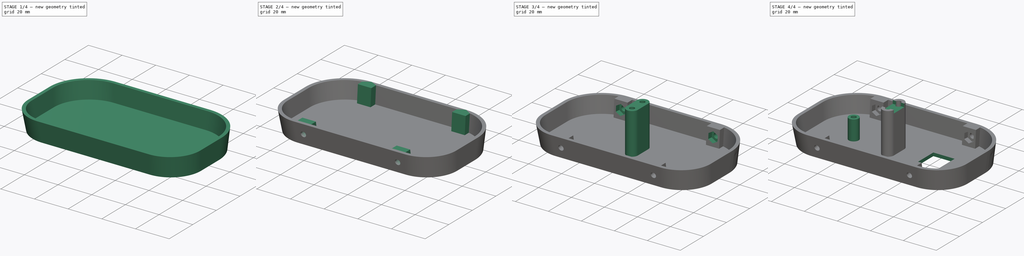
[diagram: build sequence overview — one tinted view per stage of 4, left to right]
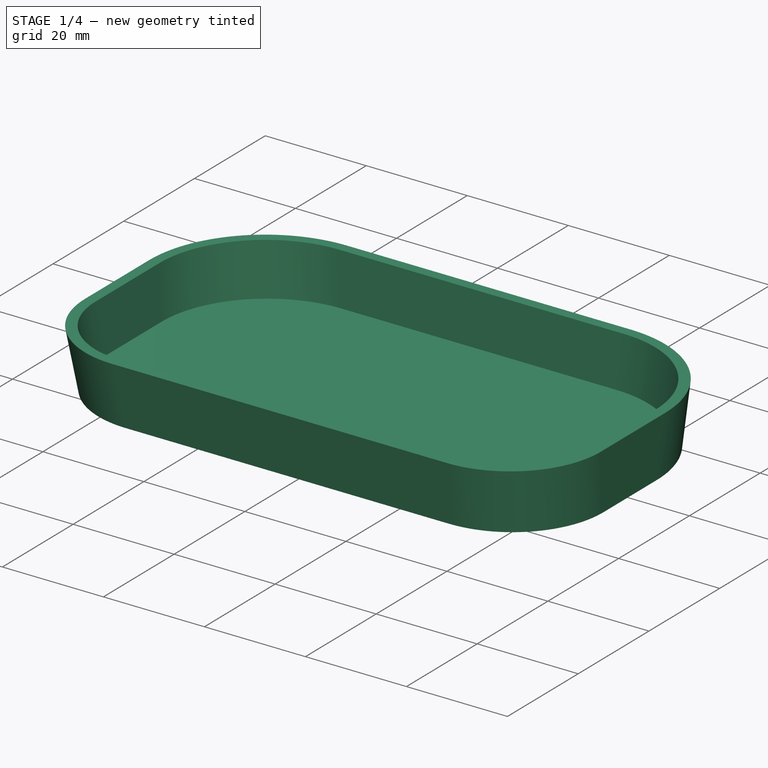
[diagram: stage 1 of 4 — iso view after this stage's code; geometry added in this stage tinted green]
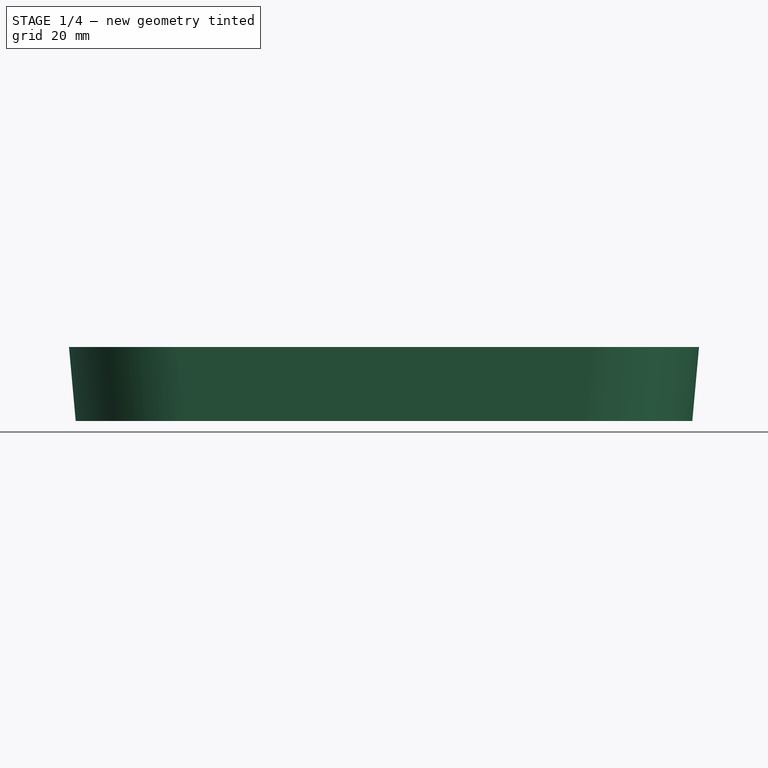
[diagram: stage 1 of 4 — front view after this stage's code; geometry added in this stage tinted green]
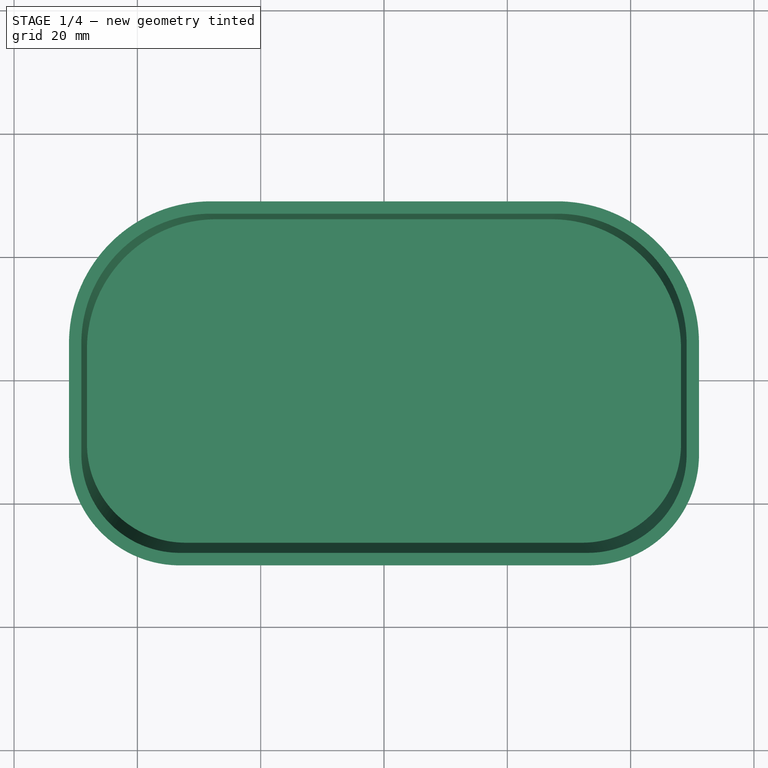
[diagram: stage 1 of 4 — top view after this stage's code; geometry added in this stage tinted green]
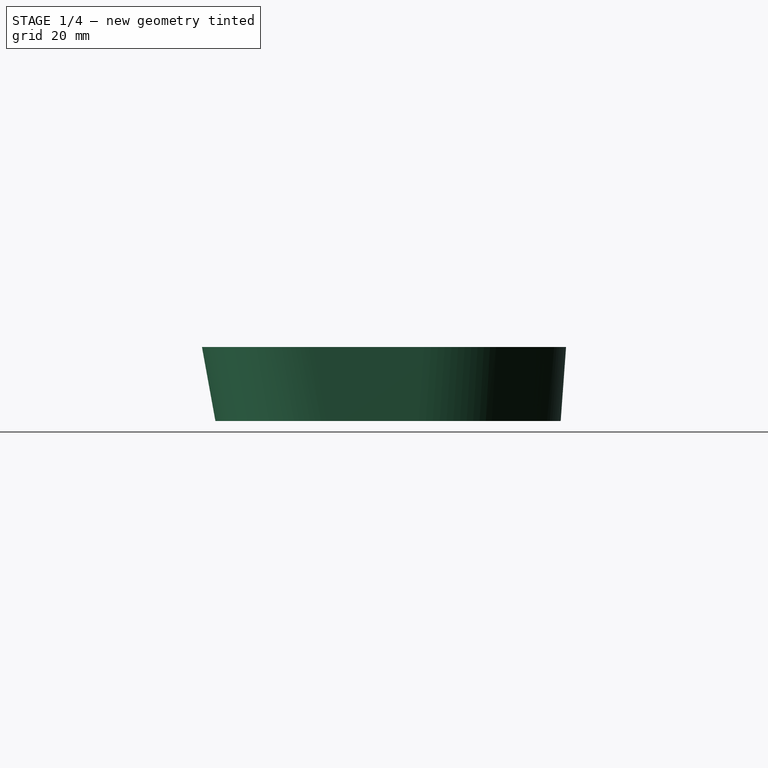
[diagram: stage 1 of 4 — right view after this stage's code; geometry added in this stage tinted green]
FCSTD DOCUMENT  (FreeCAD 1.0R39319 (Git))
Label: Rear_Cover_Plate_RectangleButton
License: All rights reserved
LicenseURL: https://en.wikipedia.org/wiki/All_rights_reserved
objects: Sketcher::SketchObject×13, PartDesign::Pocket×7, PartDesign::Pad×4, PartDesign::Plane×2, PartDesign::AdditiveLoft×1, PartDesign::Thickness×1, PartDesign::Body×1
note: 68 computed .brp shape members not serialized (recipe doc carries the construction recipe); baked Part::Feature solids carry a one-line shape summary decoded from their .brp

FEATURE [Sketcher::SketchObject] Sketch  label="sk_base_bottom"
  ArcFitTolerance = 1e-06
  AttachmentSupport = -> [XY_Plane]
  FullyConstrained = true
  MakeInternals = false
  MapMode = 5
  sketch-geometry (8):
    g0: LineSegment StartX=-27 StartY=68 StartZ=0 EndX=27 EndY=68 EndZ=0
    g1: ArcOfCircle CenterX=27 CenterY=45 CenterZ=0 NormalX=0 NormalY=0 NormalZ=1 AngleXU=0 Radius=23 StartAngle=2e-16 EndAngle=1.5708
    g2: LineSegment StartX=50 StartY=45 StartZ=0 EndX=50 EndY=30 EndZ=0
    g3: ArcOfCircle CenterX=32 CenterY=30 CenterZ=0 NormalX=0 NormalY=0 NormalZ=1 AngleXU=0 Radius=18 StartAngle=4.71239 EndAngle=6.28319
    g4: LineSegment StartX=32 StartY=12 StartZ=0 EndX=-32 EndY=12 EndZ=0
    g5: ArcOfCircle CenterX=-32 CenterY=30 CenterZ=0 NormalX=0 NormalY=0 NormalZ=1 AngleXU=0 Radius=18 StartAngle=3.14159 EndAngle=4.71239
    g6: LineSegment StartX=-50 StartY=30 StartZ=0 EndX=-50 EndY=45 EndZ=0
    g7: ArcOfCircle CenterX=-27 CenterY=45 CenterZ=0 NormalX=0 NormalY=0 NormalZ=1 AngleXU=0 Radius=23 StartAngle=1.5708 EndAngle=3.14159
  constraints (18):
    c: Tangent(g0,g1) = 1.5708
    c: Tangent(g1,g2) = 1.5708
    c: Tangent(g2,g3) = 1.5708
    c: Tangent(g4,g5) = 1.5708
    c: Tangent(g5,g6) = 1.5708
    c: Tangent(g6,g7) = 1.5708
    c: Tangent(g7,g0) = 1.5708
    c: Tangent(g3,g4) = 1.5708
    c: Symmetric(g1,g7,g-2)
    c: Symmetric(g3,g5,g-2)
    c: Equal(g1,g7)
    c: Equal(g5,g3)
    c: Radius(g1) = 23  'rad_upper'
    c: Radius(g3) = 18  'rad_lower'
    c: Vertical(g2)
    c: DistanceX(g6,g1) = 100  'width'
    c: Distance(g3,g-1) = 12  'position'
    c: DistanceY(g3,g0) = 56  'height'
FEATURE [Sketcher::SketchObject] Sketch001  label="sk_base_top"
  ArcFitTolerance = 1e-06
  AttachmentOffset = pos=(0,0,55) rot=(0,0,1;0rad)
  AttachmentSupport = -> [XY_Plane]
  FullyConstrained = true
  MakeInternals = false
  MapMode = 5
  Placement = pos=(0,0,55) rot=(0,0,1;0rad)
  sketch-geometry (8):
    g0: LineSegment StartX=-32 StartY=72 StartZ=0 EndX=32 EndY=72 EndZ=0
    g1: ArcOfCircle CenterX=32 CenterY=49 CenterZ=0 NormalX=0 NormalY=0 NormalZ=1 AngleXU=0 Radius=23 StartAngle=0 EndAngle=1.5708
    g2: LineSegment StartX=55 StartY=49 StartZ=0 EndX=55 EndY=20 EndZ=0
    g3: ArcOfCircle CenterX=37 CenterY=20 CenterZ=0 NormalX=0 NormalY=0 NormalZ=1 AngleXU=0 Radius=18 StartAngle=4.71239 EndAngle=6.28319
    g4: LineSegment StartX=37 StartY=2 StartZ=0 EndX=-37 EndY=2 EndZ=0
    g5: ArcOfCircle CenterX=-37 CenterY=20 CenterZ=0 NormalX=0 NormalY=0 NormalZ=1 AngleXU=0 Radius=18 StartAngle=3.14159 EndAngle=4.71239
    g6: LineSegment StartX=-55 StartY=20 StartZ=0 EndX=-55 EndY=49 EndZ=0
    g7: ArcOfCircle CenterX=-32 CenterY=49 CenterZ=0 NormalX=0 NormalY=0 NormalZ=1 AngleXU=0 Radius=23 StartAngle=1.5708 EndAngle=3.14159
  constraints (18):
    c: Tangent(g0,g1) = 1.5708
    c: Tangent(g1,g2) = 1.5708
    c: Tangent(g2,g3) = 1.5708
    c: Tangent(g4,g5) = 1.5708
    c: Vertical(g6)
    c: Tangent(g6,g7) = 1.5708
    c: Tangent(g7,g0) = 1.5708
    c: Tangent(g3,g4) = 1.5708
    c: Symmetric(g1,g7,g-2)
    c: Symmetric(g5,g3,g-2)
    c: Equal(g1,g7)
    c: Tangent(g5,g6) = 1.5708
    c: Equal(g5,g3)
    c: DistanceX(g6,g1) = 110  'width'
    c: Radius(g1) = 23  'rad_upper'
    c: Radius(g3) = 18  'rad_lower'
    c: DistanceY(g3,g0) = 70  'height'
    c: Distance(g3,g-1) = 2  'position'
FEATURE [PartDesign::AdditiveLoft] AdditiveLoft  label="loft_base"
  Closed = false
  Profile = -> Sketch
  Refine = true
  Ruled = false
  Sections = -> [Sketch001]
  Suppressed = false
FEATURE [PartDesign::Thickness] Thickness  label="thickness_shell"
  Base = -> AdditiveLoft [Face3]
  BaseFeature = -> AdditiveLoft
  Intersection = false
  Join = 0
  Mode = 0
  Refine = true
  Reversed = true
  SupportTransform = false
  Suppressed = false
  Value = 2
FEATURE [Sketcher::SketchObject] Sketch002  label="sk_shorten"
  ArcFitTolerance = 1e-06
  AttachmentSupport = -> [XZ_Plane]
  FullyConstrained = true
  MakeInternals = false
  MapMode = 5
  Placement = pos=(0,0,0) rot=(1,0,0;1.5708rad)
  expr: .Constraints.width = <<sk_base_top>>.Constraints.width
  sketch-geometry (4):
    g0: LineSegment StartX=-55 StartY=57 StartZ=0 EndX=-55 EndY=12 EndZ=0
    g1: LineSegment StartX=-55 StartY=12 StartZ=0 EndX=55 EndY=12 EndZ=0
    g2: LineSegment StartX=55 StartY=12 StartZ=0 EndX=55 EndY=57 EndZ=0
    g3: LineSegment StartX=55 StartY=57 StartZ=0 EndX=-55 EndY=57 EndZ=0
  constraints (11):
    c: Coincident(g0,g1)
    c: Coincident(g1,g2)
    c: Coincident(g2,g3)
    c: Coincident(g3,g0)
    c: Vertical(g0)
    c: Vertical(g2)
    c: Horizontal(g1)
    c: Symmetric(g0,g2,g-2)
    c: DistanceX(g3,g3) = 110  'width'
    c: DistanceY(g2,g2) = 45  'height'
    c: Distance(g1,g-1) = 12  'shell_height'
FEATURE [PartDesign::Pocket] Pocket  label="pocket_shorten"
  BaseFeature = -> Thickness
  Direction = (0,1,-2e-16)
  Length = 5
  Length2 = 5
  Profile = -> Sketch002
  ReferenceAxis = -> Sketch002 [N_Axis]
  Refine = true
  Suppressed = false
  Type = 1
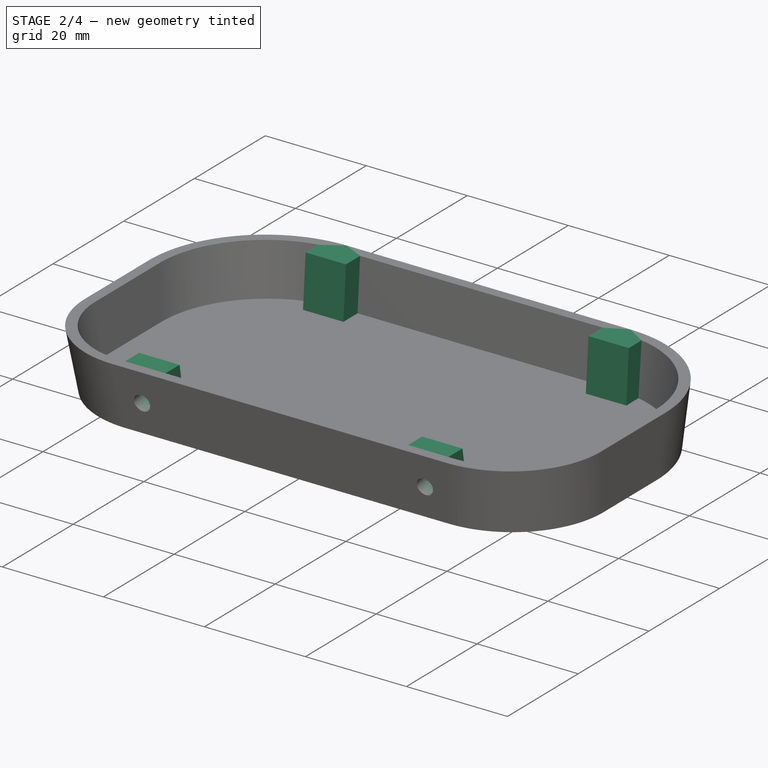
[diagram: stage 2 of 4 — iso view after this stage's code; geometry added in this stage tinted green]
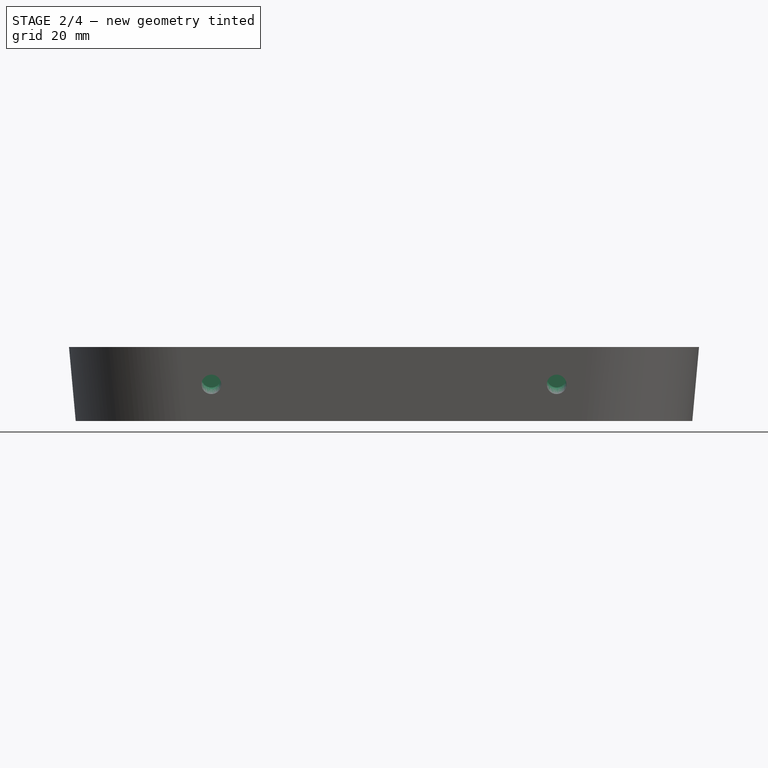
[diagram: stage 2 of 4 — front view after this stage's code; geometry added in this stage tinted green]
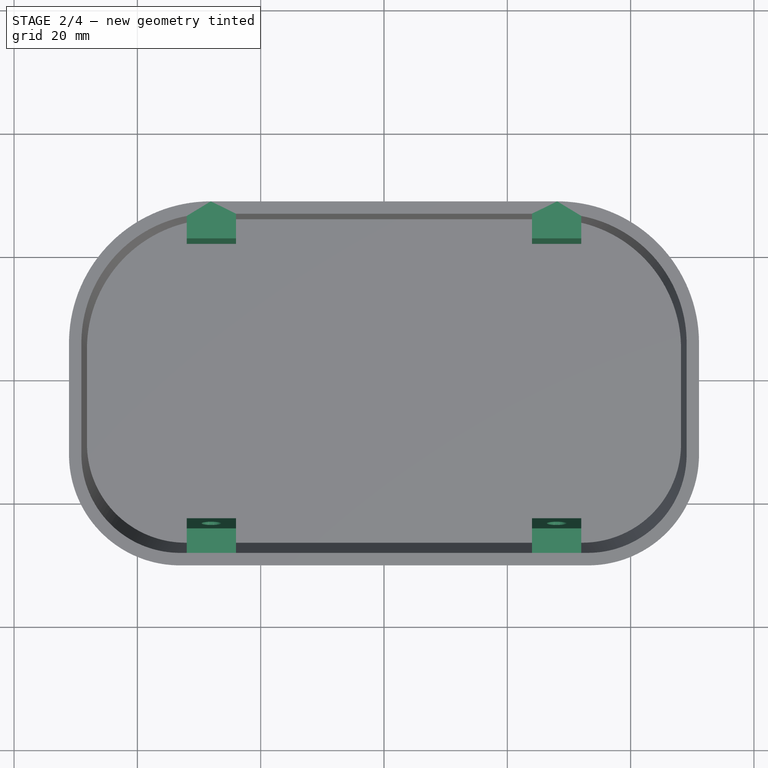
[diagram: stage 2 of 4 — top view after this stage's code; geometry added in this stage tinted green]
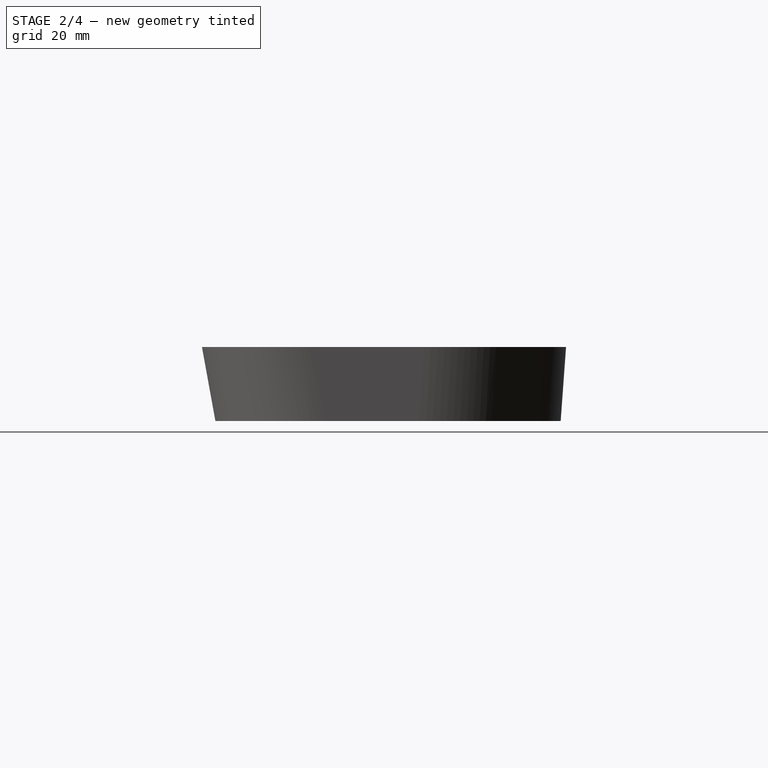
[diagram: stage 2 of 4 — right view after this stage's code; geometry added in this stage tinted green]
FEATURE [Sketcher::SketchObject] Sketch003  label="sk_screwpads_right"
  ArcFitTolerance = 1e-06
  AttachmentOffset = pos=(0,0,28) rot=(0,0,1;0rad)
  AttachmentSupport = -> [YZ_Plane]
  FullyConstrained = true
  MakeInternals = false
  MapMode = 5
  Placement = pos=(28,0,0) rot=(0.57735,0.57735,0.57735;2.0944rad)
  expr: .Constraints.height = <<sk_shorten>>.Constraints.shell_height - <<thickness_shell>>.Value
  expr: .Constraints.height_help_left = 55 mm
  expr: .Constraints.position = <<thickness_shell>>.Value
  expr: .Constraints.width_help_bottom = <<sk_base_bottom>>.Constraints.height - 2 * <<thickness_shell>>.Value
  expr: .Constraints.width_help_left_bottom = <<sk_base_bottom>>.Constraints.position + <<thickness_shell>>.Value
  expr: .Constraints.width_help_left_top = <<sk_base_top>>.Constraints.position + <<thickness_shell>>.Value
  expr: .Constraints.width_help_top = <<sk_base_top>>.Constraints.height - 2 * <<thickness_shell>>.Value
  sketch-geometry (10):
    g0: LineSegment [constr] StartX=14 StartY=0 StartZ=0 EndX=4 EndY=55 EndZ=0
    g1: LineSegment [constr] StartX=66 StartY=0 StartZ=0 EndX=70 EndY=55 EndZ=0
    g2: LineSegment StartX=13.6364 StartY=2 StartZ=0 EndX=11.8182 EndY=12 EndZ=0
    g3: LineSegment StartX=11.8182 StartY=12 StartZ=0 EndX=15.8182 EndY=12 EndZ=0
    g4: LineSegment StartX=15.8182 StartY=12 StartZ=0 EndX=17.6364 EndY=2 EndZ=0
    g5: LineSegment StartX=17.6364 StartY=2 StartZ=0 EndX=13.6364 EndY=2 EndZ=0
    g6: LineSegment StartX=62.1455 StartY=2 StartZ=0 EndX=62.8727 EndY=12 EndZ=0
    g7: LineSegment StartX=62.8727 StartY=12 StartZ=0 EndX=66.8727 EndY=12 EndZ=0
    g8: LineSegment StartX=66.8727 StartY=12 StartZ=0 EndX=66.1455 EndY=2 EndZ=0
    g9: LineSegment StartX=66.1455 StartY=2 StartZ=0 EndX=62.1455 EndY=2 EndZ=0
  constraints (32):
    c: PointOnObject(g0,g-1)
    c: DistanceY(g-1,g0) = 55  'height_help_left'
    c: Distance(g0,g-1) = 14  'width_help_left_bottom'
    c: Distance(g0,g-2) = 4  'width_help_left_top'
    c: PointOnObject(g1,g-1)
    c: Horizontal(g0,g1)
    c: DistanceX(g0,g1) = 66  'width_help_top'
    c: DistanceX(g0,g1) = 52  'width_help_bottom'
    c: PointOnObject(g2,g0)
    c: PointOnObject(g2,g0)
    c: Coincident(g2,g3)
    c: Horizontal(g3)
    c: Coincident(g3,g4)
    c: Coincident(g4,g5)
    c: Coincident(g5,g2)
    c: Coincident(g6,g7)
    c: PointOnObject(g7,g1)
    c: Horizontal(g7)
    c: Coincident(g7,g8)
    c: PointOnObject(g8,g1)
    c: Coincident(g8,g9)
    c: Coincident(g9,g6)
    c: Horizontal(g9)
    c: Horizontal(g5)
    c: Distance(g4,g-1) = 2  'position'
    c: DistanceY(g4,g4) = 10  'height'
    c: DistanceX(g3,g3) = 4  'width'
    c: Equal(g7,g3)
    c: Horizontal(g6,g3)
    c: Parallel(g4,g2)
    c: Parallel(g6,g8)
    c: Horizontal(g4,g6)
FEATURE [PartDesign::Pad] Pad  label="pad_screwpads_right"
  BaseFeature = -> Pocket
  Direction = (1,0,0)
  Length = 8
  Length2 = 10
  Midplane = true
  Profile = -> Sketch003
  ReferenceAxis = -> Sketch003 [N_Axis]
  Refine = true
  Suppressed = false
  Type = 0
FEATURE [Sketcher::SketchObject] Sketch004  label="sk_screwpads_left"
  ArcFitTolerance = 1e-06
  AttachmentOffset = pos=(0,0,-28) rot=(0,0,1;0rad)
  AttachmentSupport = -> [YZ_Plane]
  ExternalGeometry = -> [Sketch003]
  FullyConstrained = true
  MakeInternals = false
  MapMode = 5
  Placement = pos=(-28,0,0) rot=(0.57735,0.57735,0.57735;2.0944rad)
  sketch-geometry (8):
    g0: LineSegment StartX=13.6364 StartY=2 StartZ=0 EndX=11.8182 EndY=12 EndZ=0
    g1: LineSegment StartX=11.8182 StartY=12 StartZ=0 EndX=15.8182 EndY=12 EndZ=0
    g2: LineSegment StartX=15.8182 StartY=12 StartZ=0 EndX=17.6364 EndY=2 EndZ=0
    g3: LineSegment StartX=17.6364 StartY=2 StartZ=0 EndX=13.6364 EndY=2 EndZ=0
    g4: LineSegment StartX=62.8727 StartY=12 StartZ=0 EndX=66.8727 EndY=12 EndZ=0
    g5: LineSegment StartX=66.8727 StartY=12 StartZ=0 EndX=66.1455 EndY=2 EndZ=0
    g6: LineSegment StartX=66.1455 StartY=2 StartZ=0 EndX=62.1455 EndY=2 EndZ=0
    g7: LineSegment StartX=62.1455 StartY=2 StartZ=0 EndX=62.8727 EndY=12 EndZ=0
  constraints (16):
    c: Coincident(g-6,g0)
    c: Coincident(g0,g-5)
    c: Coincident(g0,g1)
    c: Coincident(g1,g-5)
    c: Coincident(g1,g2)
    c: Coincident(g2,g-6)
    c: Coincident(g2,g3)
    c: Coincident(g3,g0)
    c: Coincident(g-9,g4)
    c: Coincident(g4,g-8)
    c: Coincident(g4,g5)
    c: Coincident(g5,g-10)
    c: Coincident(g5,g6)
    c: Coincident(g6,g-10)
    c: Coincident(g6,g7)
    c: Coincident(g7,g4)
FEATURE [PartDesign::Pad] Pad001  label="pad_screwpads_left"
  BaseFeature = -> Pad
  Direction = (1,0,0)
  Length = 8
  Length2 = 10
  Midplane = true
  Profile = -> Sketch004
  ReferenceAxis = -> Sketch004 [N_Axis]
  Refine = true
  Suppressed = false
  Type = 0
FEATURE [PartDesign::Plane] DatumPlane  label="plane_screwpads_bottom"
  AttachmentOffset = pos=(0,0,18) rot=(-1,0,0;0.179853rad)
  AttachmentSupport = -> [XZ_Plane]
  Length = 60.7831
  MapMode = 5
  Placement = pos=(0,18,-4e-15) rot=(0,0.640747,0.767752;3.14159rad)
  ResizeMode = 0
  Width = 68.9209
  expr: .AttachmentOffset.Base.z = <<sk_base_bottom>>.Constraints.position + <<thickness_shell>>.Value + <<sk_screwpads_right>>.Constraints.width
  expr: .AttachmentOffset.Rotation.Roll = -atan((<<sk_base_bottom>>.Constraints.position - <<sk_base_top>>.Constraints.position) / 55 mm)
FEATURE [PartDesign::Plane] DatumPlane001  label="plane_screwpads_top"
  AttachmentOffset = pos=(0,0,-62) rot=(-1,0,0;0.072599rad)
  AttachmentSupport = -> [XZ_Plane]
  Length = 60.3436
  MapMode = 5
  Placement = pos=(0,62,-1.38e-14) rot=(1,0,0;1.4982rad)
  ResizeMode = 0
  Width = 63.8387
  expr: .AttachmentOffset.Base.z = -(<<sk_base_bottom>>.Constraints.position + <<sk_base_bottom>>.Constraints.height - <<thickness_shell>>.Value - <<sk_screwpads_right>>.Constraints.width)
  expr: .AttachmentOffset.Rotation.Roll = -atan(4 mm / 55 mm)
FEATURE [Sketcher::SketchObject] Sketch005  label="sk_screwholes_bottom"
  ArcFitTolerance = 1e-06
  AttachmentSupport = -> [DatumPlane]
  FullyConstrained = true
  MakeInternals = false
  MapMode = 5
  Placement = pos=(0,18,-4e-15) rot=(0,0.640747,0.767752;3.14159rad)
  expr: .Constraints.height_help = <<sk_screwpads_right>>.Constraints.height / cos(atan((<<sk_base_bottom>>.Constraints.position - <<sk_base_top>>.Constraints.position) / 55 mm))
  expr: .Constraints.pos_height_help = <<thickness_shell>>.Value / cos(atan((<<sk_base_bottom>>.Constraints.position - <<sk_base_top>>.Constraints.position) / 55 mm))
  sketch-geometry (7):
    g0: LineSegment [constr] StartX=-32 StartY=2.03279 StartZ=0 EndX=-24 EndY=2.03279 EndZ=0
    g1: Circle CenterX=-28 CenterY=7.11476 CenterZ=0 NormalX=0 NormalY=0 NormalZ=1 AngleXU=0 Radius=1.6
    g2: Circle CenterX=28 CenterY=7.11476 CenterZ=0 NormalX=0 NormalY=0 NormalZ=1 AngleXU=0 Radius=1.6
    g3: LineSegment [constr] StartX=-32 StartY=12.1967 StartZ=0 EndX=-24 EndY=12.1967 EndZ=0
    g4: LineSegment [constr] StartX=-32 StartY=12.1967 StartZ=0 EndX=-28 EndY=7.11476 EndZ=0
    g5: LineSegment [constr] StartX=-28 StartY=7.11476 StartZ=0 EndX=-24 EndY=2.03279 EndZ=0
    g6: LineSegment [constr] StartX=-28 StartY=7.11476 StartZ=0 EndX=-24 EndY=12.1967 EndZ=0
  constraints (19):
    c: Horizontal(g0)
    c: Equal(g2,g1)
    c: Radius(g1) = 1.6  'rad_screw'
    c: Symmetric(g2,g1,g-2)
    c: Distance(g0,g-1) = 2.03279  'pos_height_help'
    c: DistanceX(g0,g0) = 8  'width_help'
    c: Distance(g0,g-2) = 24  'pos_width_help'
    c: Horizontal(g3)
    c: Equal(g3,g0)
    c: Vertical(g3,g0)
    c: DistanceY(g0,g3) = 10.1639  'height_help'
    c: Coincident(g4,g3)
    c: Coincident(g4,g1)
    c: Coincident(g5,g1)
    c: Coincident(g5,g0)
    c: Coincident(g6,g1)
    c: Coincident(g6,g3)
    c: Equal(g4,g6)
    c: Equal(g5,g4)
FEATURE [PartDesign::Pocket] Pocket001  label="pocket_screwholes_bottom"
  BaseFeature = -> Pad001
  Direction = (0,-0.98387,-0.178885)
  Length = 5
  Length2 = 5
  Profile = -> Sketch005
  ReferenceAxis = -> Sketch005 [N_Axis]
  Refine = true
  Suppressed = false
  Type = 1
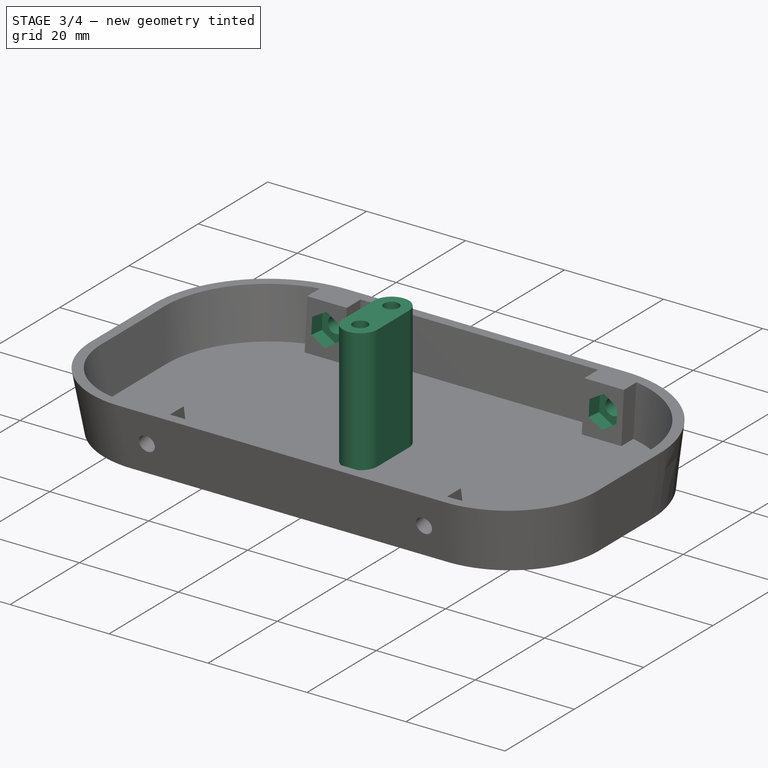
[diagram: stage 3 of 4 — iso view after this stage's code; geometry added in this stage tinted green]
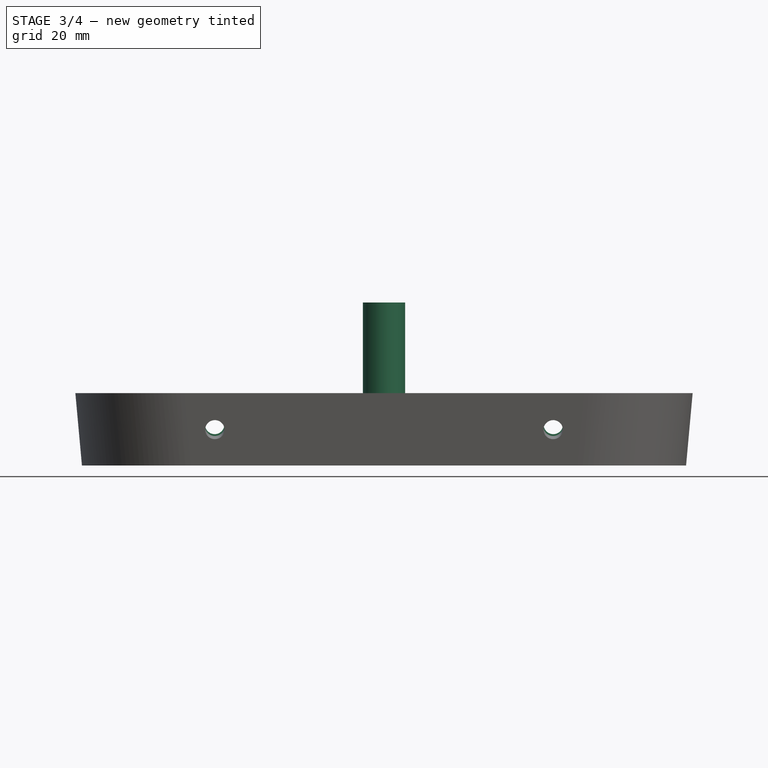
[diagram: stage 3 of 4 — front view after this stage's code; geometry added in this stage tinted green]
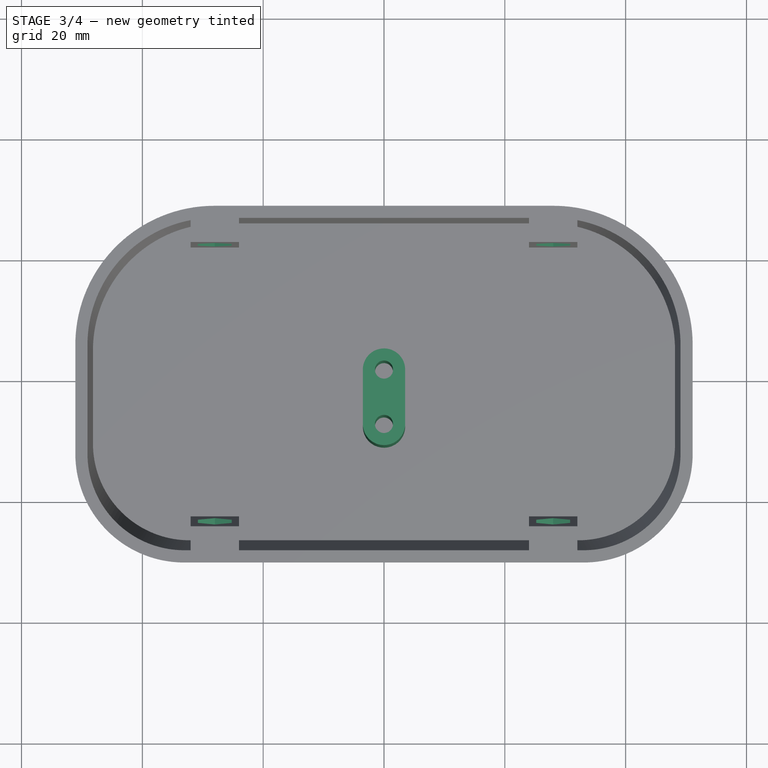
[diagram: stage 3 of 4 — top view after this stage's code; geometry added in this stage tinted green]
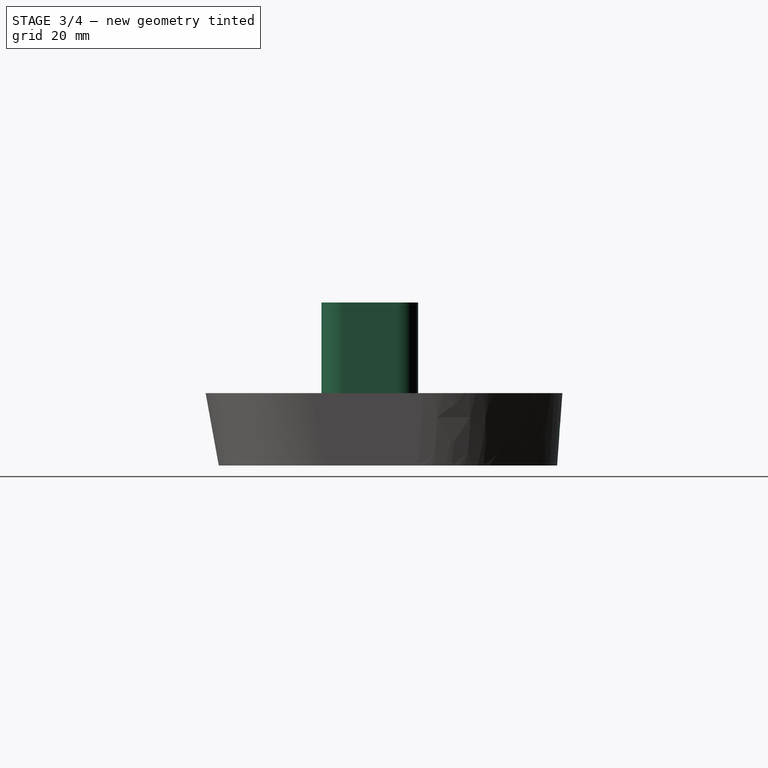
[diagram: stage 3 of 4 — right view after this stage's code; geometry added in this stage tinted green]
FEATURE [Sketcher::SketchObject] Sketch006  label="sk_screwholes_top"
  ArcFitTolerance = 1e-06
  AttachmentSupport = -> [DatumPlane001]
  FullyConstrained = false
  MakeInternals = false
  MapMode = 5
  Placement = pos=(0,62,-1.24e-14) rot=(1,0,0;1.4982rad)
  expr: .Constraints.height_help = <<sk_screwpads_right>>.Constraints.height / cos(atan(4 mm / 55 mm))
  expr: .Constraints.position_help_height = <<thickness_shell>>.Value / cos(tan(4 mm / 5 mm))
  expr: .Constraints.position_width_help = <<sk_screwholes_bottom>>.Constraints.pos_width_help
  expr: .Constraints.rad_screw = <<sk_screwholes_bottom>>.Constraints.rad_screw
  expr: .Constraints.width_help = <<sk_screwholes_bottom>>.Constraints.width_help
  sketch-geometry (7):
    g0: LineSegment [constr] StartX=32.0487 StartY=12.0264 StartZ=0 EndX=24 EndY=12.0264 EndZ=0
    g1: LineSegment [constr] StartX=32 StartY=2 StartZ=0 EndX=24 EndY=2 EndZ=0
    g2: Circle CenterX=28.0244 CenterY=7.03265 CenterZ=0 NormalX=0 NormalY=0 NormalZ=1 AngleXU=0 Radius=1.6
    g3: Circle CenterX=-28.0244 CenterY=7.03265 CenterZ=0 NormalX=0 NormalY=0 NormalZ=1 AngleXU=0 Radius=1.6
    g4: LineSegment [constr] StartX=28.0244 StartY=7.03265 StartZ=0 EndX=24 EndY=12.0264 EndZ=0
    g5: LineSegment [constr] StartX=28.0244 StartY=7.03265 StartZ=0 EndX=32.0487 EndY=12.0264 EndZ=0
    g6: LineSegment [constr] StartX=28.0244 StartY=7.03265 StartZ=0 EndX=32 EndY=2 EndZ=0
  constraints (18):
    c: Horizontal(g0)
    c: Horizontal(g1)
    c: Vertical(g1,g0)
    c: Equal(g2,g3)
    c: Radius(g2) = 1.6  'rad_screw'
    c: DistanceX(g1,g1) = 8  'width_help'
    c: Distance(g1,g-1) = 2  'position_help_height'
    c: DistanceY(g1,g0) = 10.0264  'height_help'
    c: Coincident(g4,g2)
    c: Coincident(g4,g0)
    c: Coincident(g5,g2)
    c: Coincident(g5,g0)
    c: Coincident(g6,g2)
    c: Coincident(g6,g1)
    c: Equal(g4,g5)
    c: Equal(g6,g4)
    c: Symmetric(g2,g3,g-2)
    c: Distance(g1,g-2) = 24  'position_width_help'
FEATURE [Sketcher::SketchObject] Sketch007  label="sk_nutholes_bottom"
  ArcFitTolerance = 1e-06
  AttachmentSupport = -> [DatumPlane]
  ExternalGeometry = -> [Sketch005]
  FullyConstrained = true
  MakeInternals = false
  MapMode = 5
  Placement = pos=(0,18,-4e-15) rot=(0,0.640747,0.767752;3.14159rad)
  sketch-geometry (14):
    g0: LineSegment StartX=-25.2 StartY=5.49818 StartZ=0 EndX=-25.2 EndY=8.73134 EndZ=0
    g1: LineSegment StartX=-25.2 StartY=8.73134 StartZ=0 EndX=-28 EndY=10.3479 EndZ=0
    g2: LineSegment StartX=-28 StartY=10.3479 StartZ=0 EndX=-30.8 EndY=8.73134 EndZ=0
    g3: LineSegment StartX=-30.8 StartY=8.73134 StartZ=0 EndX=-30.8 EndY=5.49818 EndZ=0
    g4: LineSegment StartX=-30.8 StartY=5.49818 StartZ=0 EndX=-28 EndY=3.8816 EndZ=0
    g5: LineSegment StartX=-28 StartY=3.8816 StartZ=0 EndX=-25.2 EndY=5.49818 EndZ=0
    g6: Circle [constr] CenterX=-28 CenterY=7.11476 CenterZ=0 NormalX=0 NormalY=0 NormalZ=1 AngleXU=0 Radius=3.23316
    g7: LineSegment StartX=28 StartY=10.3479 StartZ=0 EndX=25.2 EndY=8.73134 EndZ=0
    g8: LineSegment StartX=25.2 StartY=8.73134 StartZ=0 EndX=25.2 EndY=5.49818 EndZ=0
    g9: LineSegment StartX=25.2 StartY=5.49818 StartZ=0 EndX=28 EndY=3.8816 EndZ=0
    g10: LineSegment StartX=28 StartY=3.8816 StartZ=0 EndX=30.8 EndY=5.49818 EndZ=0
    g11: LineSegment StartX=30.8 StartY=5.49818 StartZ=0 EndX=30.8 EndY=8.73134 EndZ=0
    g12: LineSegment StartX=30.8 StartY=8.73134 StartZ=0 EndX=28 EndY=10.3479 EndZ=0
    g13: Circle [constr] CenterX=28 CenterY=7.11476 CenterZ=0 NormalX=0 NormalY=0 NormalZ=1 AngleXU=0 Radius=3.23316
  constraints (32):
    c: Coincident(g0,g1)
    c: Coincident(g1,g2)
    c: Coincident(g2,g3)
    c: Coincident(g3,g4)
    c: Coincident(g4,g5)
    c: Coincident(g5,g0)
    c: Equal(g0, g1-g5) x5
    c: PointOnObject(g0,g6)
    c: PointOnObject(g1,g6)
    c: PointOnObject(g2,g6)
    c: PointOnObject(g3,g6)
    c: PointOnObject(g4,g6)
    c: PointOnObject(g5,g6)
    c: Coincident(g6,g-3)
    c: Coincident(g7,g8)
    c: Coincident(g8,g9)
    c: Coincident(g9,g10)
    c: Coincident(g10,g11)
    c: Coincident(g11,g12)
    c: Coincident(g12,g7)
    c: Equal(g7, g8-g12) x5
    c: PointOnObject(g7,g13)
    c: PointOnObject(g8,g13)
    c: PointOnObject(g9,g13)
    c: PointOnObject(g10,g13)
    c: PointOnObject(g11,g13)
    c: PointOnObject(g12,g13)
    c: Coincident(g13,g-4)
    c: DistanceX(g2,g0) = 5.6  'width'
    c: Horizontal(g1,g7)
    c: Vertical(g1,g4)
    c: Vertical(g7,g9)
FEATURE [PartDesign::Pocket] Pocket002  label="pocket_nutholes_bottom"
  BaseFeature = -> Pocket001
  Direction = (0,-0.98387,-0.178885)
  Length = 3
  Length2 = 5
  Profile = -> Sketch007
  ReferenceAxis = -> Sketch007 [N_Axis]
  Refine = true
  Suppressed = false
  Type = 0
FEATURE [PartDesign::Pocket] Pocket003  label="pocket_screwholes_top"
  BaseFeature = -> Pocket002
  Direction = (0,0.997366,-0.0725357)
  Length = 5
  Length2 = 5
  Profile = -> Sketch006
  ReferenceAxis = -> Sketch006 [N_Axis]
  Refine = true
  Suppressed = false
  Type = 1
FEATURE [Sketcher::SketchObject] Sketch008  label="sk_nutholes_top"
  ArcFitTolerance = 1e-06
  AttachmentSupport = -> [DatumPlane001]
  ExternalGeometry = -> [Sketch006]
  FullyConstrained = true
  MakeInternals = false
  MapMode = 5
  Placement = pos=(0,62,-1.24e-14) rot=(1,0,0;1.4982rad)
  expr: .Constraints.width = <<sk_nutholes_bottom>>.Constraints.width
  sketch-geometry (14):
    g0: LineSegment StartX=-28.0244 StartY=10.2658 StartZ=0 EndX=-30.8244 EndY=8.64923 EndZ=0
    g1: LineSegment StartX=-30.8244 StartY=8.64923 StartZ=0 EndX=-30.8244 EndY=5.41607 EndZ=0
    g2: LineSegment StartX=-30.8244 StartY=5.41607 StartZ=0 EndX=-28.0244 EndY=3.79948 EndZ=0
    g3: LineSegment StartX=-28.0244 StartY=3.79948 StartZ=0 EndX=-25.2244 EndY=5.41607 EndZ=0
    g4: LineSegment StartX=-25.2244 StartY=5.41607 StartZ=0 EndX=-25.2244 EndY=8.64923 EndZ=0
    g5: LineSegment StartX=-25.2244 StartY=8.64923 StartZ=0 EndX=-28.0244 EndY=10.2658 EndZ=0
    g6: Circle [constr] CenterX=-28.0244 CenterY=7.03265 CenterZ=0 NormalX=0 NormalY=0 NormalZ=1 AngleXU=0 Radius=3.23316
    g7: LineSegment StartX=28.0244 StartY=10.2658 StartZ=0 EndX=25.2244 EndY=8.64923 EndZ=0
    g8: LineSegment StartX=25.2244 StartY=8.64923 StartZ=0 EndX=25.2244 EndY=5.41607 EndZ=0
    g9: LineSegment StartX=25.2244 StartY=5.41607 StartZ=0 EndX=28.0244 EndY=3.79948 EndZ=0
    g10: LineSegment StartX=28.0244 StartY=3.79948 StartZ=0 EndX=30.8244 EndY=5.41607 EndZ=0
    g11: LineSegment StartX=30.8244 StartY=5.41607 StartZ=0 EndX=30.8244 EndY=8.64923 EndZ=0
    g12: LineSegment StartX=30.8244 StartY=8.64923 StartZ=0 EndX=28.0244 EndY=10.2658 EndZ=0
    g13: Circle [constr] CenterX=28.0244 CenterY=7.03265 CenterZ=0 NormalX=0 NormalY=0 NormalZ=1 AngleXU=0 Radius=3.23316
  constraints (32):
    c: Coincident(g0,g1)
    c: Coincident(g1,g2)
    c: Coincident(g2,g3)
    c: Coincident(g3,g4)
    c: Coincident(g4,g5)
    c: Coincident(g5,g0)
    c: Equal(g0, g1-g5) x5
    c: PointOnObject(g0,g6)
    c: PointOnObject(g1,g6)
    c: PointOnObject(g2,g6)
    c: PointOnObject(g3,g6)
    c: PointOnObject(g4,g6)
    c: PointOnObject(g5,g6)
    c: Coincident(g6,g-3)
    c: Coincident(g7,g8)
    c: Coincident(g8,g9)
    c: Coincident(g9,g10)
    c: Coincident(g10,g11)
    c: Coincident(g11,g12)
    c: Coincident(g12,g7)
    c: Equal(g7, g8-g12) x5
    c: PointOnObject(g7,g13)
    c: PointOnObject(g8,g13)
    c: PointOnObject(g9,g13)
    c: PointOnObject(g10,g13)
    c: PointOnObject(g11,g13)
    c: PointOnObject(g12,g13)
    c: Coincident(g13,g-4)
    c: Horizontal(g7,g0)
    c: Vertical(g7,g9)
    c: Vertical(g0,g2)
    c: DistanceX(g0,g4) = 5.6  'width'
FEATURE [PartDesign::Pocket] Pocket004  label="pocket_nutholes_top"
  BaseFeature = -> Pocket003
  Direction = (0,0.997366,-0.0725357)
  Length = 3
  Length2 = 5
  Profile = -> Sketch008
  ReferenceAxis = -> Sketch008 [N_Axis]
  Refine = true
  Suppressed = false
  Type = 0
  expr: Length = <<pocket_nutholes_bottom>>.Length
FEATURE [Sketcher::SketchObject] Sketch010  label="sk_switch_hole"
  ArcFitTolerance = 1e-06
  AttachmentSupport = -> [XY_Plane]
  FullyConstrained = true
  MakeInternals = false
  MapMode = 5
  expr: .Constraints.pos_y = <<sk_current_sensor_mount>>.Constraints.position
  sketch-geometry (5):
    g0: LineSegment StartX=17.55 StartY=46.6 StartZ=0 EndX=17.55 EndY=27.4 EndZ=0
    g1: LineSegment StartX=17.55 StartY=27.4 StartZ=0 EndX=30.45 EndY=27.4 EndZ=0
    g2: LineSegment StartX=30.45 StartY=27.4 StartZ=0 EndX=30.45 EndY=46.6 EndZ=0
    g3: LineSegment StartX=30.45 StartY=46.6 StartZ=0 EndX=17.55 EndY=46.6 EndZ=0
    g4: GeomPoint [constr] X=24 Y=37 Z=0
  constraints (13):
    c: Coincident(g0,g1)
    c: Coincident(g1,g2)
    c: Coincident(g2,g3)
    c: Coincident(g3,g0)
    c: Vertical(g0)
    c: Vertical(g2)
    c: Horizontal(g1)
    c: DistanceX(g3,g3) = 12.9  'width'
    c: DistanceY(g0,g0) = 19.2  'heigth'
    c: Horizontal(g3)
    c: Symmetric(g0,g1,g4)
    c: Distance(g4,g-2) = 24  'pos_x'
    c: Distance(g4,g-1) = 37  'pos_y'
FEATURE [Sketcher::SketchObject] Sketch011  label="sk_current_sensor_mount"
  ArcFitTolerance = 1e-06
  AttachmentOffset = pos=(0,0,2) rot=(0,0,1;0rad)
  AttachmentSupport = -> [XY_Plane]
  FullyConstrained = true
  MakeInternals = false
  MapMode = 5
  Placement = pos=(0,0,2) rot=(0,0,1;0rad)
  expr: .AttachmentOffset.Base.z = <<thickness_shell>>.Value
  expr: .Constraints.position = <<sk_base_top>>.Constraints.position + <<sk_base_top>>.Constraints.height / 2
  sketch-geometry (7):
    g0: ArcOfCircle CenterX=1e-16 CenterY=41.5 CenterZ=0 NormalX=0 NormalY=0 NormalZ=1 AngleXU=0 Radius=3.5 StartAngle=0 EndAngle=3.14159
    g1: ArcOfCircle CenterX=-1e-16 CenterY=32.5 CenterZ=0 NormalX=0 NormalY=0 NormalZ=1 AngleXU=0 Radius=3.5 StartAngle=3.14159 EndAngle=6.28319
    g2: LineSegment StartX=3.5 StartY=41.5 StartZ=0 EndX=3.5 EndY=32.5 EndZ=0
    g3: LineSegment StartX=-3.5 StartY=41.5 StartZ=0 EndX=-3.5 EndY=32.5 EndZ=0
    g4: Circle CenterX=-1e-16 CenterY=32.5 CenterZ=0 NormalX=0 NormalY=0 NormalZ=1 AngleXU=0 Radius=1.5
    g5: Circle CenterX=1e-16 CenterY=41.5 CenterZ=0 NormalX=0 NormalY=0 NormalZ=1 AngleXU=0 Radius=1.5
    g6: GeomPoint [constr] X=0 Y=37 Z=0
  constraints (15):
    c: Tangent(g0,g2) = 1.5708
    c: Tangent(g0,g3) = -1.5708
    c: Tangent(g1,g2) = 1.5708
    c: Tangent(g1,g3) = -1.5708
    c: Equal(g0,g1)
    c: Vertical(g3)
    c: Radius(g1) = 3.5  'rad_outer'
    c: Coincident(g4,g1)
    c: Coincident(g5,g0)
    c: Equal(g5,g4)
    c: Radius(g4) = 1.5  'rad_hole'
    c: DistanceY(g1,g0) = 9  'width'
    c: PointOnObject(g6,g-2)
    c: Symmetric(g0,g1,g6)
    c: Distance(g6,g-1) = 37  'position'
FEATURE [PartDesign::Pad] Pad002  label="pad_current_sensor_mount"
  BaseFeature = -> Pocket004
  Direction = (0,0,1)
  Length = 25
  Length2 = 10
  Profile = -> Sketch011
  ReferenceAxis = -> Sketch011 [N_Axis]
  Refine = true
  Suppressed = false
  Type = 0
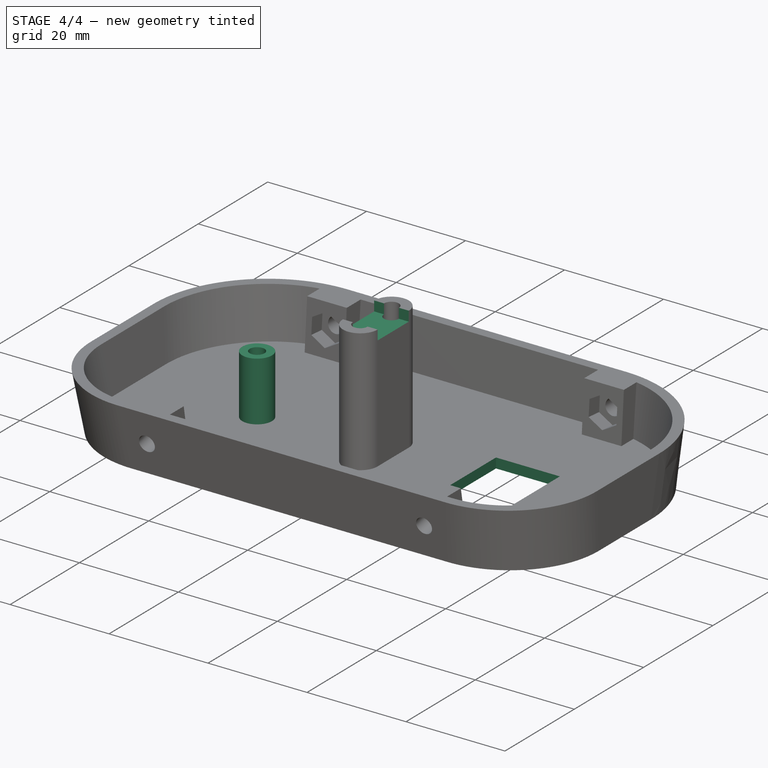
[diagram: stage 4 of 4 — iso view after this stage's code; geometry added in this stage tinted green]
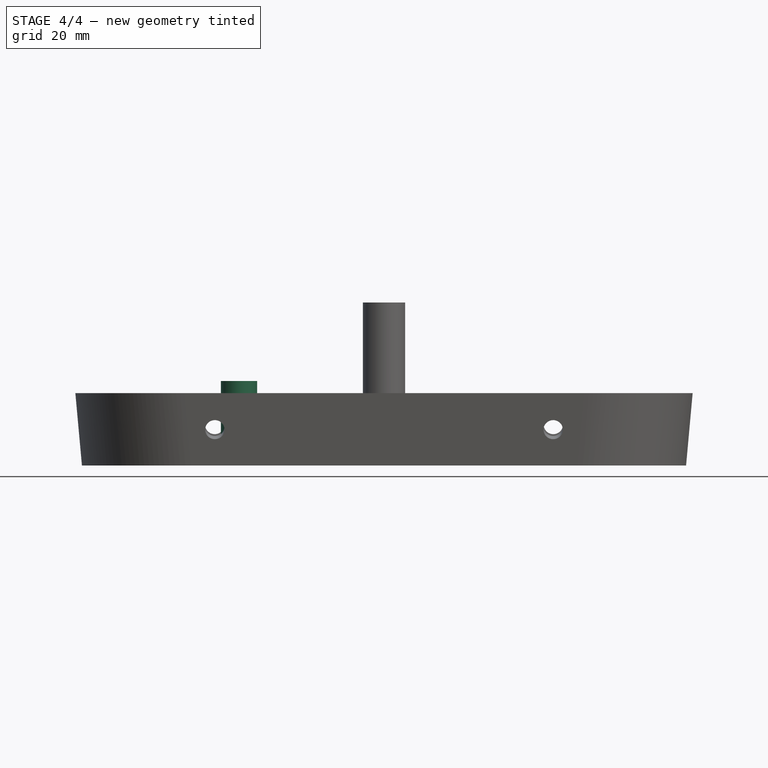
[diagram: stage 4 of 4 — front view after this stage's code; geometry added in this stage tinted green]
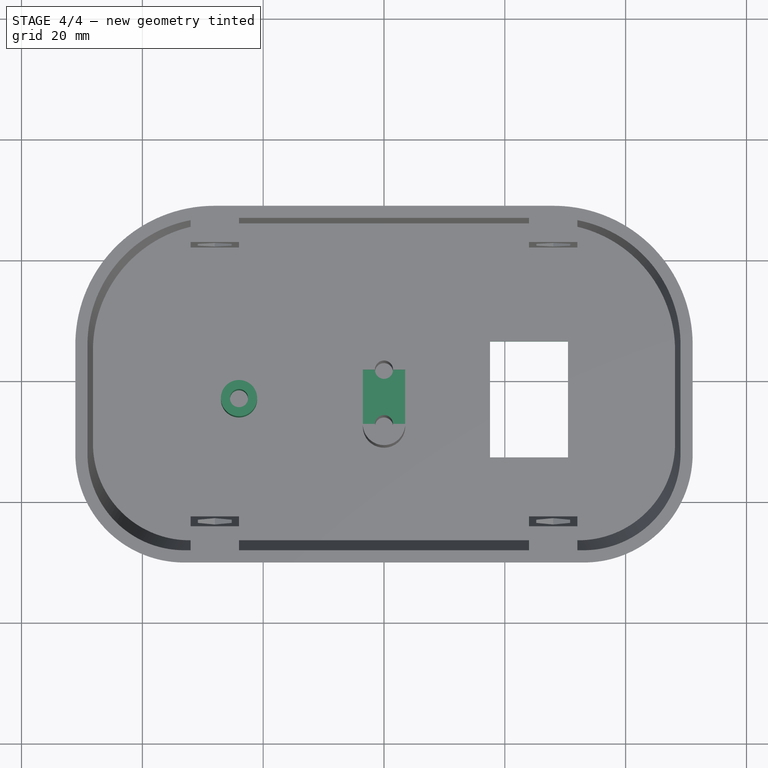
[diagram: stage 4 of 4 — top view after this stage's code; geometry added in this stage tinted green]
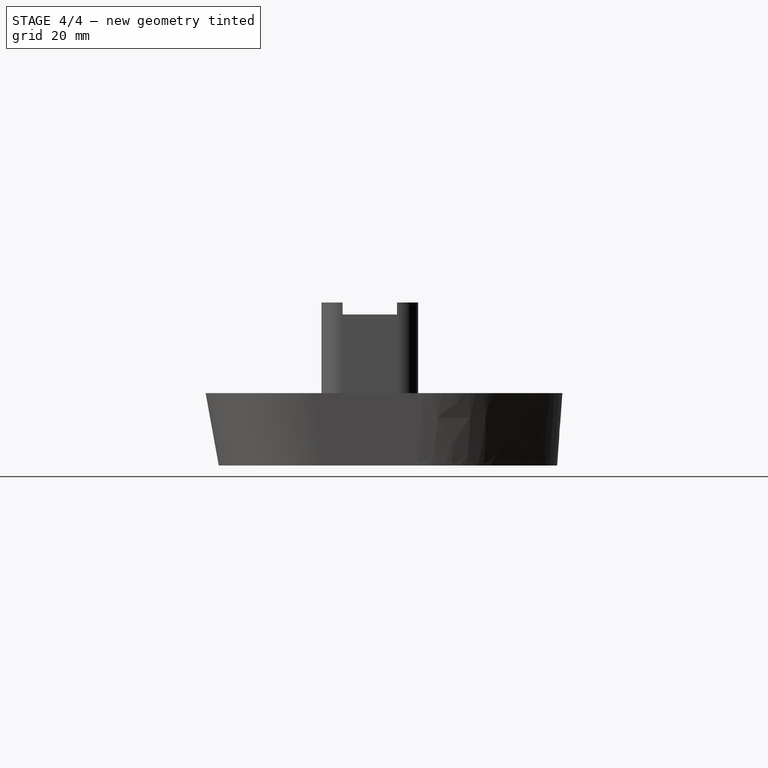
[diagram: stage 4 of 4 — right view after this stage's code; geometry added in this stage tinted green]
FEATURE [Sketcher::SketchObject] Sketch012  label="sk_current_sensor_ic_cutout"
  ArcFitTolerance = 1e-06
  AttachmentSupport = -> [YZ_Plane]
  FullyConstrained = true
  MakeInternals = false
  MapMode = 5
  Placement = pos=(0,0,0) rot=(0.57735,0.57735,0.57735;2.0944rad)
  expr: .Constraints.position = <<sk_current_sensor_mount>>.Constraints.position
  expr: .Constraints.position_height = <<thickness_shell>>.Value + <<pad_current_sensor_mount>>.Length
  expr: .Constraints.width = <<sk_current_sensor_mount>>.Constraints.width
  sketch-geometry (5):
    g0: LineSegment StartX=32.5 StartY=27 StartZ=0 EndX=32.5 EndY=25 EndZ=0
    g1: LineSegment StartX=32.5 StartY=25 StartZ=0 EndX=41.5 EndY=25 EndZ=0
    g2: LineSegment StartX=41.5 StartY=25 StartZ=0 EndX=41.5 EndY=27 EndZ=0
    g3: LineSegment StartX=41.5 StartY=27 StartZ=0 EndX=32.5 EndY=27 EndZ=0
    g4: GeomPoint [constr] X=37 Y=27 Z=0
  constraints (13):
    c: Coincident(g0,g1)
    c: Coincident(g1,g2)
    c: Coincident(g2,g3)
    c: Coincident(g3,g0)
    c: Vertical(g0)
    c: Vertical(g2)
    c: Horizontal(g1)
    c: DistanceY(g0,g0) = 2  'height'
    c: DistanceX(g3,g3) = 9  'width'
    c: Distance(g0,g-1) = 27  'position_height'
    c: Symmetric(g3,g3,g4)
    c: Distance(g4,g-2) = 37  'position'
    c: Horizontal(g3)
FEATURE [PartDesign::Pocket] Pocket007  label="pocket_current_sensor_ic_cutout"
  BaseFeature = -> Pad002
  Direction = (-1,0,0)
  Length = 5
  Length2 = 5
  Midplane = true
  Profile = -> Sketch012
  ReferenceAxis = -> Sketch012 [N_Axis]
  Refine = true
  Suppressed = false
  Type = 1
FEATURE [Sketcher::SketchObject] Sketch013  label="sk_voltage_sensor_mount"
  ArcFitTolerance = 1e-06
  AttachmentOffset = pos=(0,0,2) rot=(0,0,1;0rad)
  AttachmentSupport = -> [XY_Plane]
  FullyConstrained = true
  MakeInternals = false
  MapMode = 5
  Placement = pos=(0,0,2) rot=(0,0,1;0rad)
  expr: .AttachmentOffset.Base.z = <<thickness_shell>>.Value
  expr: .Constraints.pos_y = <<sk_current_sensor_mount>>.Constraints.position
  expr: .Constraints.rad_hole = <<sk_current_sensor_mount>>.Constraints.rad_hole
  sketch-geometry (2):
    g0: Circle CenterX=-24 CenterY=37 CenterZ=0 NormalX=0 NormalY=0 NormalZ=1 AngleXU=0 Radius=3
    g1: Circle CenterX=-24 CenterY=37 CenterZ=0 NormalX=0 NormalY=0 NormalZ=1 AngleXU=0 Radius=1.5
  constraints (5):
    c: Coincident(g1,g0)
    c: Radius(g1) = 1.5  'rad_hole'
    c: Radius(g0) = 3  'rad_outer'
    c: Distance(g0,g-1) = 37  'pos_y'
    c: Distance(g0,g-2) = 24  'pos_x'
FEATURE [PartDesign::Pad] Pad003  label="pad_voltage_sensor_mount"
  BaseFeature = -> Pocket007
  Direction = (0,0,1)
  Length = 12
  Length2 = 10
  Profile = -> Sketch013
  ReferenceAxis = -> Sketch013 [N_Axis]
  Refine = true
  Suppressed = false
  Type = 0
FEATURE [PartDesign::Pocket] Pocket006  label="pocket_switch_hole"
  BaseFeature = -> Pad003
  Direction = (0,0,-1)
  Length = 5
  Length2 = 5
  Profile = -> Sketch010
  ReferenceAxis = -> Sketch010 [N_Axis]
  Refine = true
  Reversed = true
  Suppressed = false
  Type = 1
FEATURE [PartDesign::Body] Body  label="Rear_Cover_Plate"
  AllowCompound = false
  Group = -> [Sketch,Sketch001,AdditiveLoft,Thickness,Sketch002,Pocket,Sketch003,Pad,Sketch004,Pad001,DatumPlane,DatumPlane001,Sketch005,Pocket001,Sketch006,Sketch007,Pocket002,Pocket003,Sketch008,Pocket004,Sketch010,Sketch011,Pad002,Sketch012,Pocket007,Sketch013,Pad003,Pocket006]
  Origin = -> Origin
  Tip = -> Pocket006
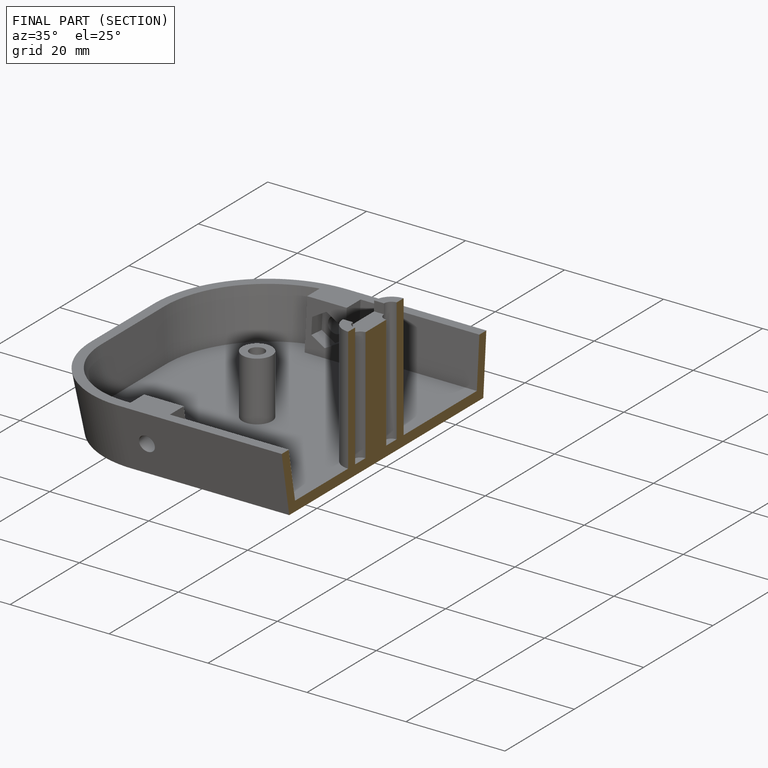
[diagram: finished part — half-section view (interior)]
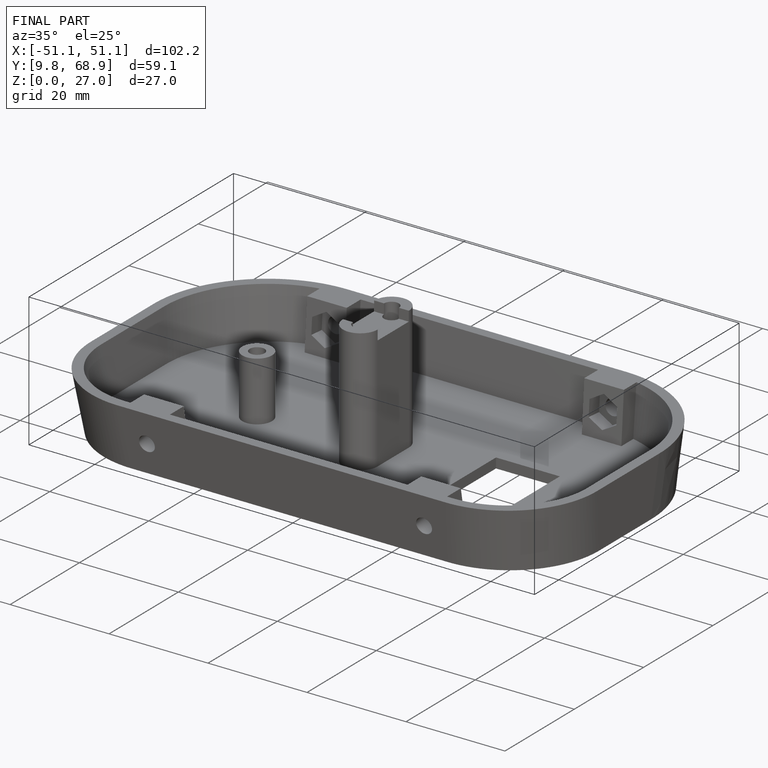
[diagram: finished part — iso view with bounding-box wireframe]
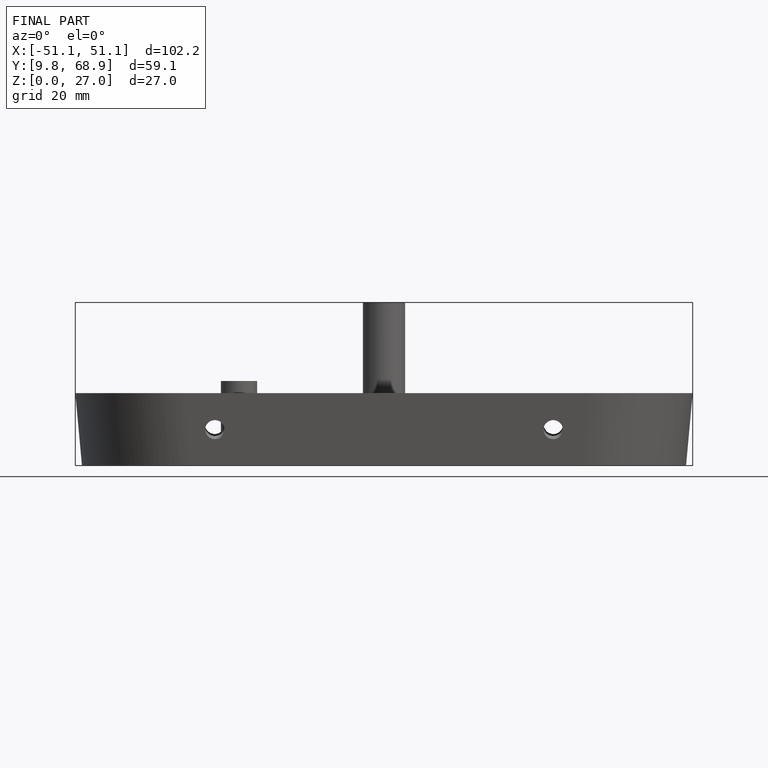
[diagram: finished part — front view with bounding-box wireframe]
